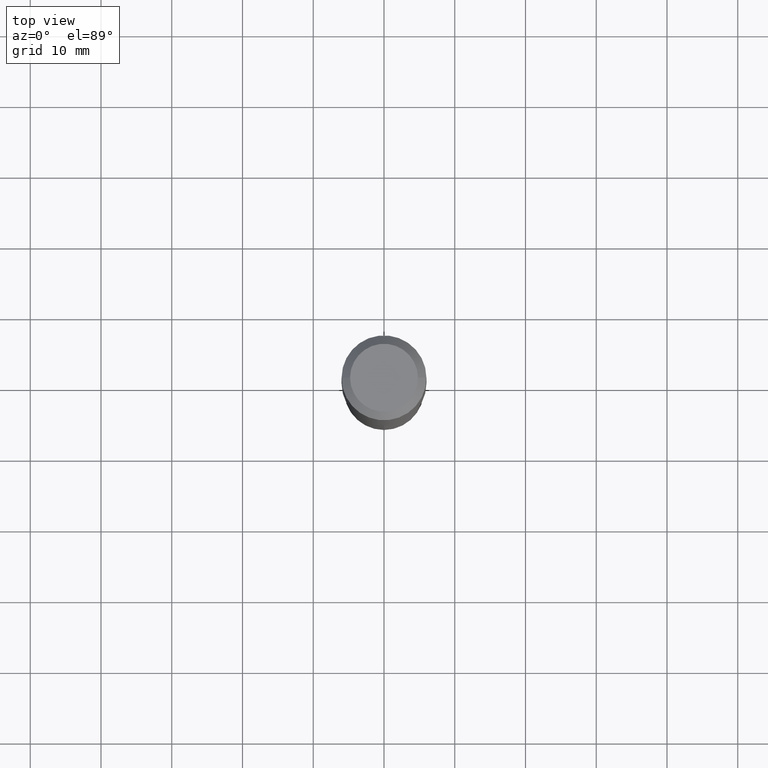
[diagram: clean part render]
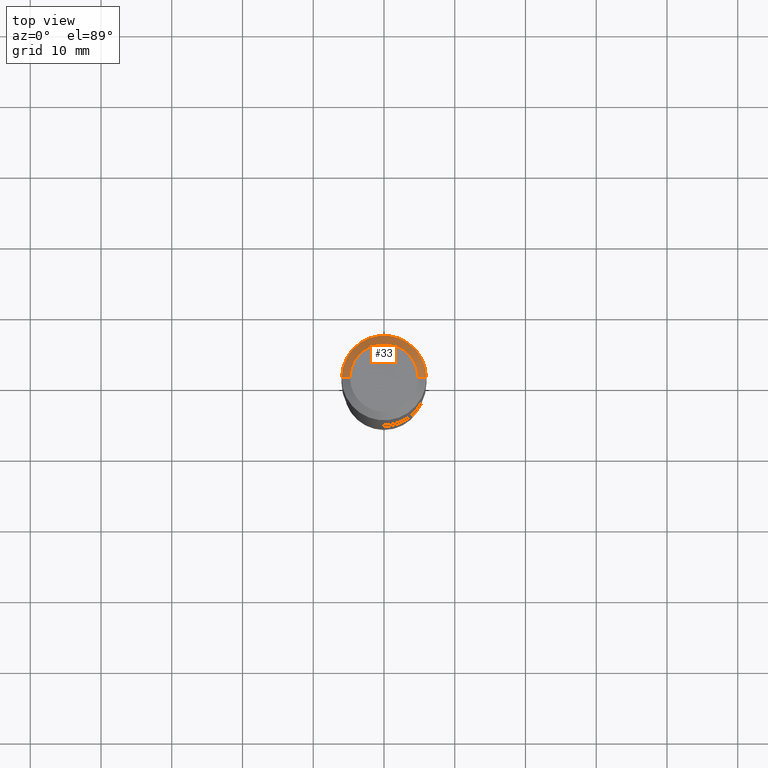
[diagram: same view with one face highlighted and labeled with its STEP entity id]
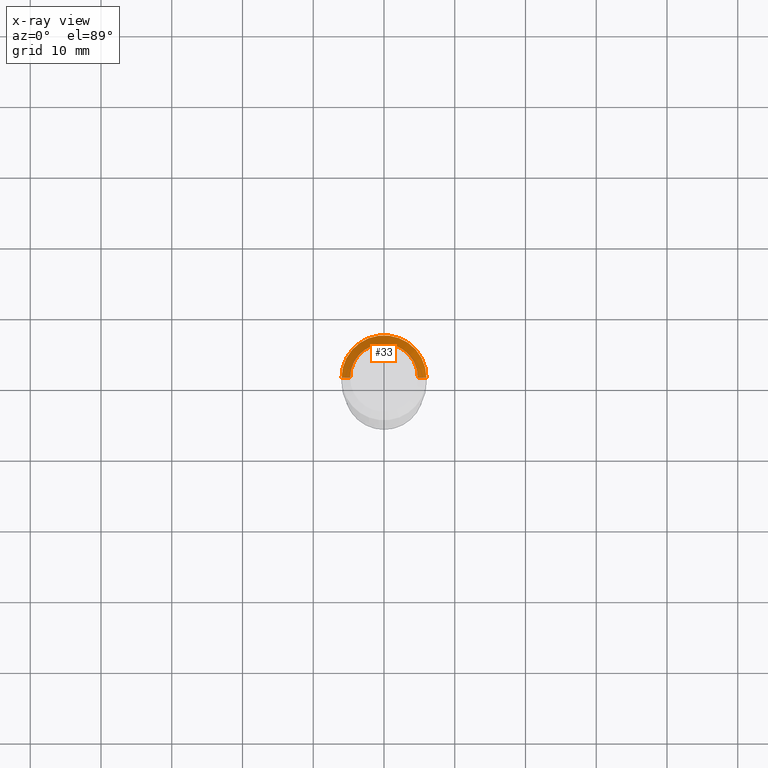
[diagram: x-ray of the same camera — body ghosted, the highlighted face saturated]
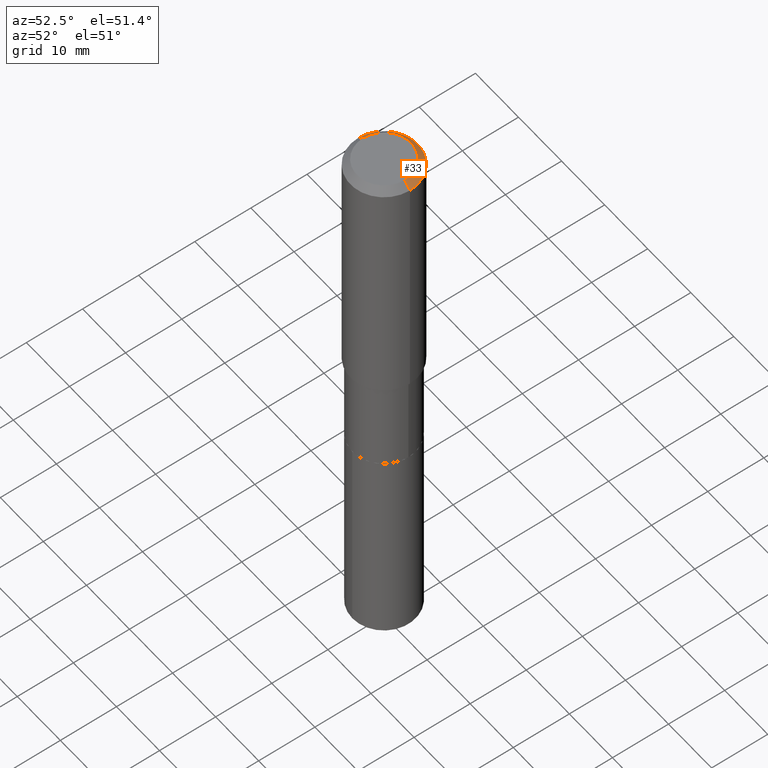
[diagram: same view with one face highlighted and labeled with its STEP entity id]
A machine part, top view. The second image highlights one B-rep face of the part: STEP entity #33.
The next image is the same camera in x-ray: the body ghosted, the highlighted face saturated — about 0% of this face is hidden behind the body in this view.
A second angle (auxiliary view) of the same face is appended — the face is thin or edge-on in the first view.
In plain terms, the highlighted conical surface has half-angle 45 deg.
Its self-contained STEP definition (entity closure, byte-faithful):
#1 = DIRECTION ( 'NONE',  ( -0.7071067811865453523, 2.468850131082234184E-15, -0.7071067811865496822 ) ) ;
#4 = DIRECTION ( 'NONE',  ( -2.445468806185136597E-29, 3.491481338843145583E-15, 1.000000000000000000 ) ) ;
#12 = LINE ( 'NONE', #46, #124 ) ;
#15 = CARTESIAN_POINT ( 'NONE',  ( 0.2361999999999999933, -1.814313362916447440E-15, -0.04724000000000028177 ) ) ;
#22 = CONICAL_SURFACE ( 'NONE', #301, 0.2361999999999999933, 0.7853981633974452814 ) ;
#33 = ADVANCED_FACE ( 'NONE', ( #186 ), #22, .T. ) ;
#46 = CARTESIAN_POINT ( 'NONE',  ( -0.2361999999999999933, 1.484438206022545019E-15, -0.04724000000000028177 ) ) ;
#61 = LINE ( 'NONE', #139, #182 ) ;
#63 = CARTESIAN_POINT ( 'NONE',  ( -9.427742298522546243E-47, 1.346031739168365344E-32, 3.855188123715862256E-18 ) ) ;
#84 = ORIENTED_EDGE ( 'NONE', *, *, #145, .F. ) ;
#93 = ORIENTED_EDGE ( 'NONE', *, *, #242, .F. ) ;
#123 = VERTEX_POINT ( 'NONE', #15 ) ;
#124 = VECTOR ( 'NONE', #1, 39.37007874015748143 ) ;
#126 = DIRECTION ( 'NONE',  ( 1.000000000000000000, -6.982962677686266711E-15, 0.000000000000000000 ) ) ;
#136 = DIRECTION ( 'NONE',  ( 1.000000000000000000, -6.982962677686266711E-15, 4.876185090822587894E-29 ) ) ;
#139 = CARTESIAN_POINT ( 'NONE',  ( 0.2361999999999999933, -1.785387205520586782E-15, -0.04724000000000028177 ) ) ;
#145 = EDGE_CURVE ( 'NONE', #192, #231, #446, .T. ) ;
#147 = CARTESIAN_POINT ( 'NONE',  ( 1.155239464041865506E-30, -1.649375784469511859E-16, -0.04724000000000028177 ) ) ;
#152 = VERTEX_POINT ( 'NONE', #437 ) ;
#169 = CARTESIAN_POINT ( 'NONE',  ( 0.1889600000000000168, -1.540873453589747738E-15, 3.855188123725863225E-18 ) ) ;
#182 = VECTOR ( 'NONE', #230, 39.37007874015748143 ) ;
#186 = FACE_OUTER_BOUND ( 'NONE', #409, .T. ) ;
#192 = VERTEX_POINT ( 'NONE', #169 ) ;
#194 = EDGE_CURVE ( 'NONE', #123, #152, #279, .T. ) ;
#230 = DIRECTION ( 'NONE',  ( 0.7071067811865453523, -7.319954787623248157E-15, -0.7071067811865496822 ) ) ;
#231 = VERTEX_POINT ( 'NONE', #241 ) ;
#241 = CARTESIAN_POINT ( 'NONE',  ( -0.1889600000000000168, 1.401969416799070942E-15, 3.855188123706346622E-18 ) ) ;
#242 = EDGE_CURVE ( 'NONE', #231, #152, #12, .T. ) ;
#273 = ORIENTED_EDGE ( 'NONE', *, *, #194, .T. ) ;
#279 = CIRCLE ( 'NONE', #469, 0.2361999999999999933 ) ;
#282 = DIRECTION ( 'NONE',  ( -2.445468806185136597E-29, 3.491481338843145583E-15, 1.000000000000000000 ) ) ;
#288 = EDGE_CURVE ( 'NONE', #192, #123, #61, .T. ) ;
#295 = ORIENTED_EDGE ( 'NONE', *, *, #288, .T. ) ;
#297 = DIRECTION ( 'NONE',  ( 2.445468806185136597E-29, -3.491481338843145583E-15, -1.000000000000000000 ) ) ;
#301 = AXIS2_PLACEMENT_3D ( 'NONE', #147, #297, #357 ) ;
#316 = CARTESIAN_POINT ( 'NONE',  ( 1.155239464041865506E-30, -1.649375784469511859E-16, -0.04724000000000028177 ) ) ;
#357 = DIRECTION ( 'NONE',  ( -1.000000000000000000, 6.982962677686266711E-15, 0.000000000000000000 ) ) ;
#409 = EDGE_LOOP ( 'NONE', ( #84, #295, #273, #93 ) ) ;
#437 = CARTESIAN_POINT ( 'NONE',  ( -0.2361999999999999933, -1.493865971133888639E-15, -0.04724000000000028177 ) ) ;
#446 = CIRCLE ( 'NONE', #488, 0.1889600000000000168 ) ;
#469 = AXIS2_PLACEMENT_3D ( 'NONE', #316, #4, #126 ) ;
#488 = AXIS2_PLACEMENT_3D ( 'NONE', #63, #282, #136 ) ;